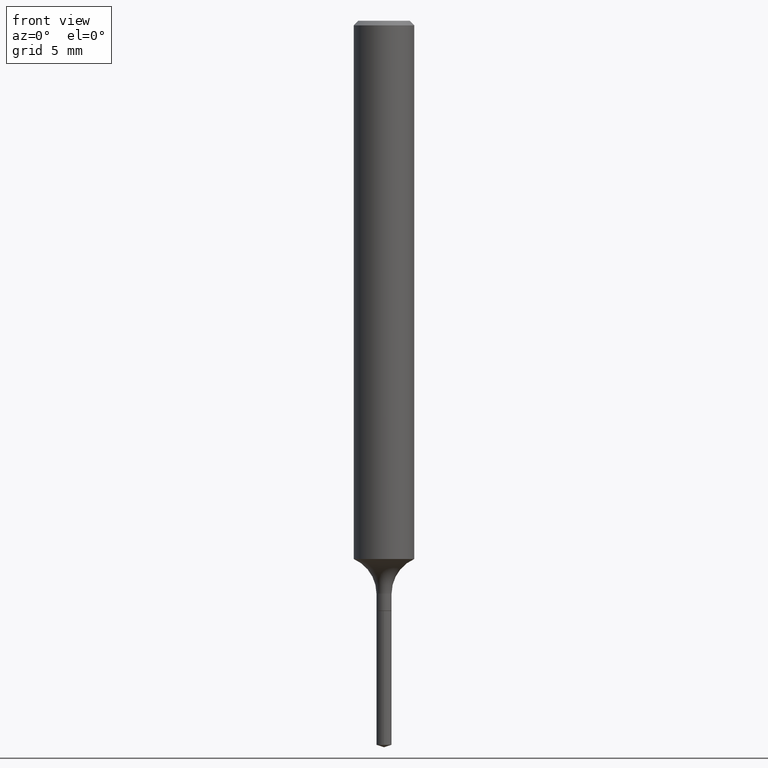
[diagram: clean part render]
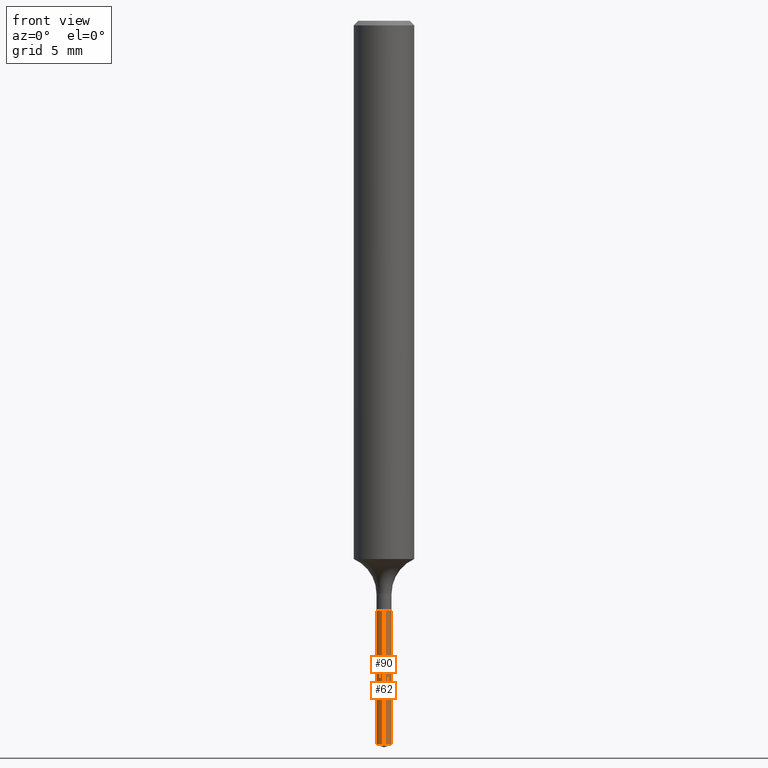
[diagram: same view with one multi-face feature highlighted, each face labeled with its STEP entity id]
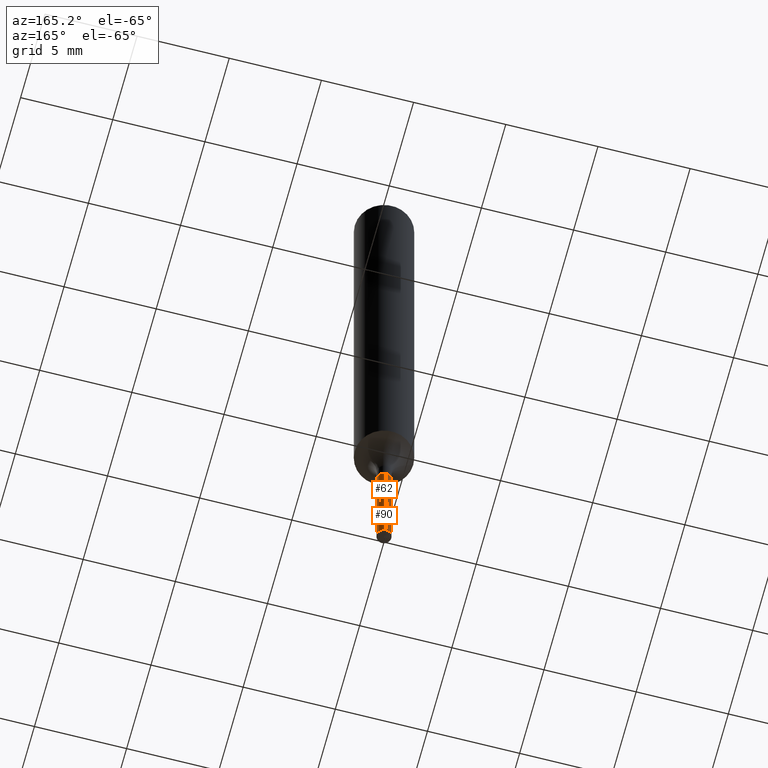
[diagram: same view with one multi-face feature highlighted, each face labeled with its STEP entity id]
A machine part, front view. The highlighted faces form ONE feature: a constant-radius fillet chain: 2 tangent blend faces with common blend radius 0.3962 mm. The faces share edges in the B-rep.
A second angle (auxiliary view) of the same feature is appended — it is thin or edge-on in the first view.
Their STEP definitions:
[1] entity #90 (Cylinder):
#7 = DIRECTION ( 'NONE',  ( -2.404617780644374598E-29, 3.549982332513496351E-15, 1.000000000000000000 ) ) ;
#36 = EDGE_CURVE ( 'NONE', #58, #260, #492, .T. ) ;
#42 = DIRECTION ( 'NONE',  ( -6.982962677686265922E-15, -1.000000000000000000, 0.000000000000000000 ) ) ;
#50 = CARTESIAN_POINT ( 'NONE',  ( -1.089342177718759998E-16, -0.01560000000000426323, -1.218699999999999894 ) ) ;
#58 = VERTEX_POINT ( 'NONE', #235 ) ;
#75 = DIRECTION ( 'NONE',  ( -2.404617780644374598E-29, 3.549982332513496351E-15, 1.000000000000000000 ) ) ;
#76 = DIRECTION ( 'NONE',  ( -6.982962677686265922E-15, -1.000000000000000000, 0.000000000000000000 ) ) ;
#90 = ADVANCED_FACE ( 'NONE', ( #116 ), #170, .T. ) ;
#111 = VERTEX_POINT ( 'NONE', #163 ) ;
#116 = FACE_OUTER_BOUND ( 'NONE', #455, .T. ) ;
#122 = CARTESIAN_POINT ( 'NONE',  ( 3.644884315839404491E-29, -5.236217177756448257E-15, -1.495081338893487599 ) ) ;
#132 = CIRCLE ( 'NONE', #195, 0.01559999999999999928 ) ;
#143 = VERTEX_POINT ( 'NONE', #209 ) ;
#147 = ORIENTED_EDGE ( 'NONE', *, *, #36, .T. ) ;
#148 = AXIS2_PLACEMENT_3D ( 'NONE', #378, #7, #42 ) ;
#157 = VECTOR ( 'NONE', #278, 39.37007874015748143 ) ;
#163 = CARTESIAN_POINT ( 'NONE',  ( 1.108446667786122443E-16, 0.01559999999999574054, -1.218699999999999894 ) ) ;
#170 = CYLINDRICAL_SURFACE ( 'NONE', #148, 0.01560000000000000796 ) ;
#183 = EDGE_CURVE ( 'NONE', #260, #143, #280, .T. ) ;
#195 = AXIS2_PLACEMENT_3D ( 'NONE', #230, #418, #76 ) ;
#209 = CARTESIAN_POINT ( 'NONE',  ( -1.089342177718759382E-16, -0.01560000000000425456, -1.218699999999999894 ) ) ;
#230 = CARTESIAN_POINT ( 'NONE',  ( 2.980292834097825835E-29, -4.255068307648140826E-15, -1.218699999999999894 ) ) ;
#235 = CARTESIAN_POINT ( 'NONE',  ( 1.108446667786121827E-16, 0.01559999999999478124, -1.495081338893487599 ) ) ;
#240 = DIRECTION ( 'NONE',  ( -6.982962677686265922E-15, -1.000000000000000000, 0.000000000000000000 ) ) ;
#248 = AXIS2_PLACEMENT_3D ( 'NONE', #122, #75, #240 ) ;
#256 = LINE ( 'NONE', #404, #259 ) ;
#259 = VECTOR ( 'NONE', #261, 39.37007874015748143 ) ;
#260 = VERTEX_POINT ( 'NONE', #359 ) ;
#261 = DIRECTION ( 'NONE',  ( -2.404617780644374598E-29, 3.549982332513496745E-15, 1.000000000000000000 ) ) ;
#278 = DIRECTION ( 'NONE',  ( -2.404617780644374598E-29, 3.549982332513496745E-15, 1.000000000000000000 ) ) ;
#280 = LINE ( 'NONE', #50, #157 ) ;
#295 = ORIENTED_EDGE ( 'NONE', *, *, #427, .F. ) ;
#317 = EDGE_CURVE ( 'NONE', #58, #111, #256, .T. ) ;
#327 = ORIENTED_EDGE ( 'NONE', *, *, #317, .F. ) ;
#359 = CARTESIAN_POINT ( 'NONE',  ( -1.089342177718693931E-16, -0.01560000000000525203, -1.495081338893487599 ) ) ;
#378 = CARTESIAN_POINT ( 'NONE',  ( 2.980292834097825835E-29, -4.255068307648140826E-15, -1.218699999999999894 ) ) ;
#404 = CARTESIAN_POINT ( 'NONE',  ( 1.108446667786054650E-16, 0.01559999999999575095, -1.218699999999999894 ) ) ;
#410 = ORIENTED_EDGE ( 'NONE', *, *, #183, .T. ) ;
#418 = DIRECTION ( 'NONE',  ( -2.404617780644374598E-29, 3.549982332513496351E-15, 1.000000000000000000 ) ) ;
#427 = EDGE_CURVE ( 'NONE', #111, #143, #132, .T. ) ;
#455 = EDGE_LOOP ( 'NONE', ( #327, #147, #410, #295 ) ) ;
#492 = CIRCLE ( 'NONE', #248, 0.01560000000000001663 ) ;
[2] entity #62 (Cylinder):
#18 = DIRECTION ( 'NONE',  ( -2.404617780644374598E-29, 3.549982332513496351E-15, 1.000000000000000000 ) ) ;
#44 = CYLINDRICAL_SURFACE ( 'NONE', #241, 0.01560000000000000796 ) ;
#50 = CARTESIAN_POINT ( 'NONE',  ( -1.089342177718759998E-16, -0.01560000000000426323, -1.218699999999999894 ) ) ;
#52 = EDGE_CURVE ( 'NONE', #260, #58, #470, .T. ) ;
#54 = ORIENTED_EDGE ( 'NONE', *, *, #183, .F. ) ;
#58 = VERTEX_POINT ( 'NONE', #235 ) ;
#62 = ADVANCED_FACE ( 'NONE', ( #307 ), #44, .T. ) ;
#111 = VERTEX_POINT ( 'NONE', #163 ) ;
#143 = VERTEX_POINT ( 'NONE', #209 ) ;
#149 = EDGE_CURVE ( 'NONE', #143, #111, #391, .T. ) ;
#157 = VECTOR ( 'NONE', #278, 39.37007874015748143 ) ;
#163 = CARTESIAN_POINT ( 'NONE',  ( 1.108446667786122443E-16, 0.01559999999999574054, -1.218699999999999894 ) ) ;
#179 = ORIENTED_EDGE ( 'NONE', *, *, #52, .T. ) ;
#183 = EDGE_CURVE ( 'NONE', #260, #143, #280, .T. ) ;
#197 = ORIENTED_EDGE ( 'NONE', *, *, #149, .F. ) ;
#207 = DIRECTION ( 'NONE',  ( -6.982962677686265922E-15, -1.000000000000000000, 0.000000000000000000 ) ) ;
#209 = CARTESIAN_POINT ( 'NONE',  ( -1.089342177718759382E-16, -0.01560000000000425456, -1.218699999999999894 ) ) ;
#235 = CARTESIAN_POINT ( 'NONE',  ( 1.108446667786121827E-16, 0.01559999999999478124, -1.495081338893487599 ) ) ;
#241 = AXIS2_PLACEMENT_3D ( 'NONE', #419, #466, #207 ) ;
#256 = LINE ( 'NONE', #404, #259 ) ;
#259 = VECTOR ( 'NONE', #261, 39.37007874015748143 ) ;
#260 = VERTEX_POINT ( 'NONE', #359 ) ;
#261 = DIRECTION ( 'NONE',  ( -2.404617780644374598E-29, 3.549982332513496745E-15, 1.000000000000000000 ) ) ;
#276 = CARTESIAN_POINT ( 'NONE',  ( 2.980292834097825835E-29, -4.255068307648140826E-15, -1.218699999999999894 ) ) ;
#278 = DIRECTION ( 'NONE',  ( -2.404617780644374598E-29, 3.549982332513496745E-15, 1.000000000000000000 ) ) ;
#280 = LINE ( 'NONE', #50, #157 ) ;
#307 = FACE_OUTER_BOUND ( 'NONE', #353, .T. ) ;
#317 = EDGE_CURVE ( 'NONE', #58, #111, #256, .T. ) ;
#318 = DIRECTION ( 'NONE',  ( -6.982962677686265922E-15, -1.000000000000000000, 0.000000000000000000 ) ) ;
#326 = ORIENTED_EDGE ( 'NONE', *, *, #317, .T. ) ;
#340 = DIRECTION ( 'NONE',  ( -2.404617780644374598E-29, 3.549982332513496351E-15, 1.000000000000000000 ) ) ;
#353 = EDGE_LOOP ( 'NONE', ( #179, #326, #197, #54 ) ) ;
#359 = CARTESIAN_POINT ( 'NONE',  ( -1.089342177718693931E-16, -0.01560000000000525203, -1.495081338893487599 ) ) ;
#361 = AXIS2_PLACEMENT_3D ( 'NONE', #276, #18, #318 ) ;
#374 = CARTESIAN_POINT ( 'NONE',  ( 3.644884315839404491E-29, -5.236217177756448257E-15, -1.495081338893487599 ) ) ;
#377 = AXIS2_PLACEMENT_3D ( 'NONE', #374, #340, #380 ) ;
#380 = DIRECTION ( 'NONE',  ( -6.982962677686265922E-15, -1.000000000000000000, 0.000000000000000000 ) ) ;
#391 = CIRCLE ( 'NONE', #361, 0.01559999999999999928 ) ;
#404 = CARTESIAN_POINT ( 'NONE',  ( 1.108446667786054650E-16, 0.01559999999999575095, -1.218699999999999894 ) ) ;
#419 = CARTESIAN_POINT ( 'NONE',  ( 2.980292834097825835E-29, -4.255068307648140826E-15, -1.218699999999999894 ) ) ;
#466 = DIRECTION ( 'NONE',  ( -2.404617780644374598E-29, 3.549982332513496351E-15, 1.000000000000000000 ) ) ;
#470 = CIRCLE ( 'NONE', #377, 0.01560000000000001663 ) ;